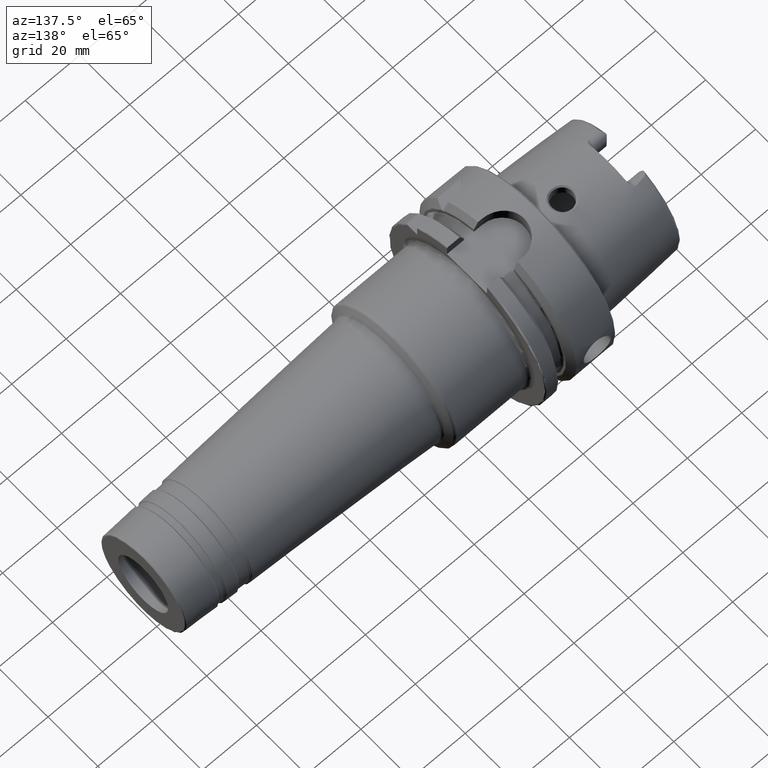
[diagram: clean part render]
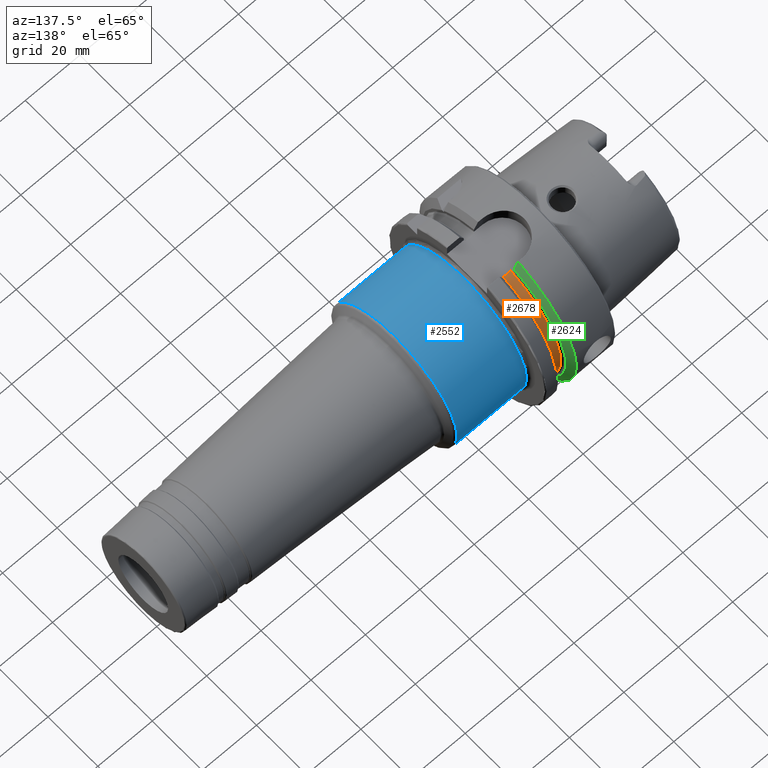
[diagram: same view with three faces highlighted in distinct colors, each labeled with its STEP entity id]
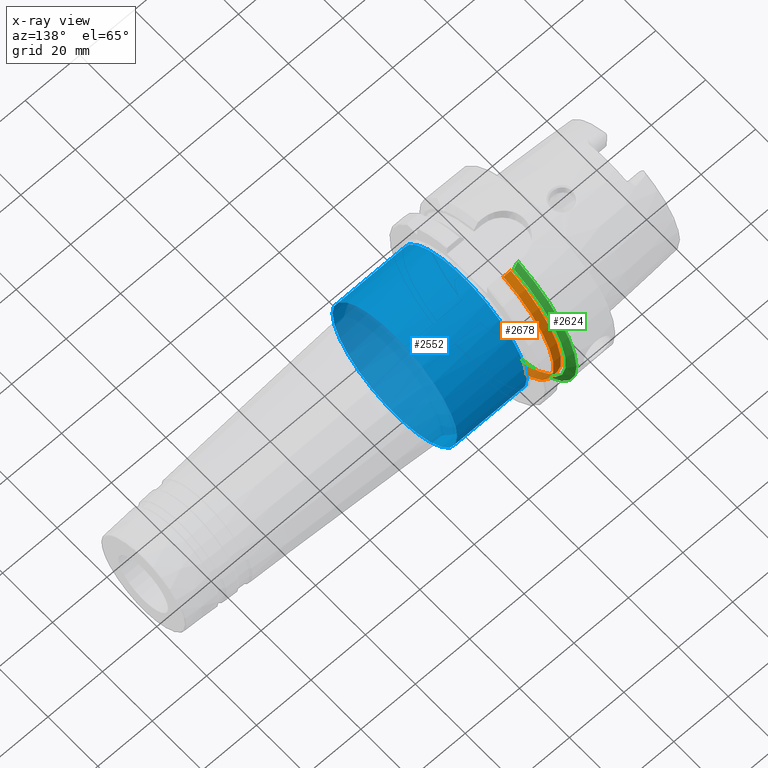
[diagram: x-ray of the same camera — body ghosted, the three highlighted faces saturated]
A machine part, auxiliary view with three faces highlighted in distinct colors.
The next image is the same camera in x-ray (body ghosted, the three faces saturated) — at least one of them is partly hidden behind the body in this view.
Their STEP definitions:

[orange] entity #2678 — the highlighted cylindrical surface (partial cylindrical patch) has radius 27.5 mm, axis along (1, 0, 0).
#182=CYLINDRICAL_SURFACE('',#3061,27.5);
#266=LINE('',#5179,#383);
#281=LINE('',#5366,#398);
#383=VECTOR('',#3622,10.);
#398=VECTOR('',#3691,10.);
#572=FACE_OUTER_BOUND('',#719,.T.);
#719=EDGE_LOOP('',(#2488,#2489,#2490,#2491));
#889=CIRCLE('',#2965,27.5);
#946=CIRCLE('',#3062,27.5);
#1174=VERTEX_POINT('',#5167);
#1175=VERTEX_POINT('',#5178);
#1198=VERTEX_POINT('',#5354);
#1199=VERTEX_POINT('',#5365);
#1539=EDGE_CURVE('',#1175,#1174,#266,.T.);
#1580=EDGE_CURVE('',#1199,#1198,#281,.T.);
#1582=EDGE_CURVE('',#1174,#1199,#889,.T.);
#1663=EDGE_CURVE('',#1175,#1198,#946,.T.);
#2488=ORIENTED_EDGE('',*,*,#1539,.T.);
#2489=ORIENTED_EDGE('',*,*,#1582,.T.);
#2490=ORIENTED_EDGE('',*,*,#1580,.T.);
#2491=ORIENTED_EDGE('',*,*,#1663,.F.);
#2678=ADVANCED_FACE('',(#572),#182,.T.);
#2965=AXIS2_PLACEMENT_3D('',#5378,#3694,#3695);
#3061=AXIS2_PLACEMENT_3D('',#5590,#3905,#3906);
#3062=AXIS2_PLACEMENT_3D('',#5591,#3907,#3908);
#3622=DIRECTION('',(-1.,0.,0.));
#3691=DIRECTION('',(1.,0.,0.));
#3694=DIRECTION('center_axis',(1.,0.,0.));
#3695=DIRECTION('ref_axis',(0.,0.,-1.));
#3905=DIRECTION('center_axis',(1.,0.,0.));
#3906=DIRECTION('ref_axis',(0.,1.,0.));
#3907=DIRECTION('center_axis',(1.,0.,0.));
#3908=DIRECTION('ref_axis',(0.,0.,-1.));
#5167=CARTESIAN_POINT('',(16.625,7.34846922834952,-26.5));
#5178=CARTESIAN_POINT('',(19.375,7.34846922834952,-26.5));
#5179=CARTESIAN_POINT('',(18.,7.34846922834952,-26.5));
#5354=CARTESIAN_POINT('',(19.375,7.34846922834952,26.5));
#5365=CARTESIAN_POINT('',(16.625,7.34846922834952,26.5));
#5366=CARTESIAN_POINT('',(18.,7.34846922834952,26.5));
#5378=CARTESIAN_POINT('Origin',(16.625,0.,0.));
#5590=CARTESIAN_POINT('Origin',(18.,0.,0.));
#5591=CARTESIAN_POINT('Origin',(19.375,0.,0.));

[blue] entity #2552 — the highlighted cylindrical surface (bore or boss wall) has radius 25 mm, axis along (1, 0, 0).
#150=CYLINDRICAL_SURFACE('',#2725,25.);
#186=LINE('',#3968,#303);
#303=VECTOR('',#3120,25.);
#446=FACE_OUTER_BOUND('',#582,.T.);
#582=EDGE_LOOP('',(#1700,#1701,#1702,#1703,#1704,#1705,#1706,#1707));
#739=CIRCLE('',#2722,25.);
#740=CIRCLE('',#2723,25.);
#741=CIRCLE('',#2724,25.);
#742=CIRCLE('',#2726,25.);
#743=CIRCLE('',#2727,25.);
#744=CIRCLE('',#2728,25.);
#963=VERTEX_POINT('',#3959);
#964=VERTEX_POINT('',#3961);
#965=VERTEX_POINT('',#3963);
#966=VERTEX_POINT('',#3967);
#967=VERTEX_POINT('',#3969);
#968=VERTEX_POINT('',#3971);
#1261=EDGE_CURVE('',#963,#964,#739,.T.);
#1262=EDGE_CURVE('',#964,#965,#740,.T.);
#1263=EDGE_CURVE('',#965,#963,#741,.T.);
#1264=EDGE_CURVE('',#964,#966,#186,.T.);
#1265=EDGE_CURVE('',#967,#966,#742,.T.);
#1266=EDGE_CURVE('',#968,#967,#743,.T.);
#1267=EDGE_CURVE('',#966,#968,#744,.T.);
#1700=ORIENTED_EDGE('',*,*,#1263,.F.);
#1701=ORIENTED_EDGE('',*,*,#1262,.F.);
#1702=ORIENTED_EDGE('',*,*,#1264,.T.);
#1703=ORIENTED_EDGE('',*,*,#1265,.F.);
#1704=ORIENTED_EDGE('',*,*,#1266,.F.);
#1705=ORIENTED_EDGE('',*,*,#1267,.F.);
#1706=ORIENTED_EDGE('',*,*,#1264,.F.);
#1707=ORIENTED_EDGE('',*,*,#1261,.F.);
#2552=ADVANCED_FACE('',(#446),#150,.T.);
#2722=AXIS2_PLACEMENT_3D('',#3962,#3112,#3113);
#2723=AXIS2_PLACEMENT_3D('',#3964,#3114,#3115);
#2724=AXIS2_PLACEMENT_3D('',#3965,#3116,#3117);
#2725=AXIS2_PLACEMENT_3D('',#3966,#3118,#3119);
#2726=AXIS2_PLACEMENT_3D('',#3970,#3121,#3122);
#2727=AXIS2_PLACEMENT_3D('',#3972,#3123,#3124);
#2728=AXIS2_PLACEMENT_3D('',#3973,#3125,#3126);
#3112=DIRECTION('center_axis',(1.,0.,0.));
#3113=DIRECTION('ref_axis',(0.,-1.,1.83697019872103E-16));
#3114=DIRECTION('center_axis',(1.,0.,0.));
#3115=DIRECTION('ref_axis',(0.,-1.,1.83697019872103E-16));
#3116=DIRECTION('center_axis',(1.,0.,0.));
#3117=DIRECTION('ref_axis',(0.,-1.,1.83697019872103E-16));
#3118=DIRECTION('center_axis',(1.,0.,0.));
#3119=DIRECTION('ref_axis',(0.,1.,0.));
#3120=DIRECTION('',(-1.,0.,0.));
#3121=DIRECTION('center_axis',(-1.,0.,0.));
#3122=DIRECTION('ref_axis',(0.,-1.,-1.22464679914735E-16));
#3123=DIRECTION('center_axis',(-1.,0.,0.));
#3124=DIRECTION('ref_axis',(0.,-1.,-1.22464679914735E-16));
#3125=DIRECTION('center_axis',(-1.,0.,0.));
#3126=DIRECTION('ref_axis',(0.,-1.,-1.22464679914735E-16));
#3959=CARTESIAN_POINT('',(52.5270356701958,-3.06161699786838E-15,25.));
#3961=CARTESIAN_POINT('',(52.5270356701958,-25.,-3.06161699786838E-15));
#3962=CARTESIAN_POINT('Origin',(52.5270356701958,0.,0.));
#3963=CARTESIAN_POINT('',(52.5270356701958,25.,-1.53080849893419E-15));
#3964=CARTESIAN_POINT('Origin',(52.5270356701958,0.,0.));
#3965=CARTESIAN_POINT('Origin',(52.5270356701958,0.,0.));
#3966=CARTESIAN_POINT('Origin',(39.5521929696927,0.,0.));
#3967=CARTESIAN_POINT('',(27.,-25.,-3.06161699786838E-15));
#3968=CARTESIAN_POINT('',(39.5521929696927,-25.,-3.06161699786838E-15));
#3969=CARTESIAN_POINT('',(27.,-3.06161699786838E-15,-25.));
#3970=CARTESIAN_POINT('Origin',(27.,0.,0.));
#3971=CARTESIAN_POINT('',(27.,25.,0.));
#3972=CARTESIAN_POINT('Origin',(27.,0.,0.));
#3973=CARTESIAN_POINT('Origin',(27.,0.,0.));

[green] entity #2624 — the highlighted conical surface has half-angle 60 deg.
#24=(
BOUNDED_CURVE()
B_SPLINE_CURVE(2,(#5095,#5096,#5097),.UNSPECIFIED.,.F.,.F.)
B_SPLINE_CURVE_WITH_KNOTS((3,3),(0.,0.311314369989023),.UNSPECIFIED.)
CURVE()
GEOMETRIC_REPRESENTATION_ITEM()
RATIONAL_B_SPLINE_CURVE((1.,1.00102053193771,1.))
REPRESENTATION_ITEM('')
);
#27=(
BOUNDED_CURVE()
B_SPLINE_CURVE(2,(#5251,#5252,#5253),.UNSPECIFIED.,.F.,.F.)
B_SPLINE_CURVE_WITH_KNOTS((3,3),(0.,0.30890566777038),.UNSPECIFIED.)
CURVE()
GEOMETRIC_REPRESENTATION_ITEM()
RATIONAL_B_SPLINE_CURVE((1.,1.00099999355705,1.))
REPRESENTATION_ITEM('')
);
#434=CONICAL_SURFACE('',#2943,30.1987976320958,1.0471975511966);
#518=FACE_OUTER_BOUND('',#661,.T.);
#661=EDGE_LOOP('',(#2193,#2194,#2195,#2196));
#879=CIRCLE('',#2939,31.5);
#882=CIRCLE('',#2944,28.8975952641916);
#1162=VERTEX_POINT('',#5092);
#1163=VERTEX_POINT('',#5094);
#1181=VERTEX_POINT('',#5237);
#1184=VERTEX_POINT('',#5250);
#1519=EDGE_CURVE('',#1163,#1162,#24,.T.);
#1548=EDGE_CURVE('',#1162,#1181,#879,.T.);
#1553=EDGE_CURVE('',#1181,#1184,#27,.T.);
#1554=EDGE_CURVE('',#1163,#1184,#882,.T.);
#2193=ORIENTED_EDGE('',*,*,#1519,.T.);
#2194=ORIENTED_EDGE('',*,*,#1548,.T.);
#2195=ORIENTED_EDGE('',*,*,#1553,.T.);
#2196=ORIENTED_EDGE('',*,*,#1554,.F.);
#2624=ADVANCED_FACE('',(#518),#434,.T.);
#2939=AXIS2_PLACEMENT_3D('',#5239,#3630,#3631);
#2943=AXIS2_PLACEMENT_3D('',#5249,#3639,#3640);
#2944=AXIS2_PLACEMENT_3D('',#5254,#3641,#3642);
#3630=DIRECTION('center_axis',(1.,0.,0.));
#3631=DIRECTION('ref_axis',(0.,0.,-1.));
#3639=DIRECTION('center_axis',(-1.,0.,0.));
#3640=DIRECTION('ref_axis',(0.,1.,0.));
#3641=DIRECTION('center_axis',(1.,0.,0.));
#3642=DIRECTION('ref_axis',(0.,0.,-1.));
#5092=CARTESIAN_POINT('',(14.6225009252407,9.,-30.1869176962472));
#5094=CARTESIAN_POINT('',(16.125,9.,-27.4603534582684));
#5095=CARTESIAN_POINT('Ctrl Pts',(16.125,9.,-27.4603534582684));
#5096=CARTESIAN_POINT('Ctrl Pts',(15.4092825889603,9.,-28.7648946319264));
#5097=CARTESIAN_POINT('Ctrl Pts',(14.6225009252407,9.00000000000001,-30.1869176962472));
#5237=CARTESIAN_POINT('',(14.6225009252407,8.,30.4671954731642));
#5239=CARTESIAN_POINT('Origin',(14.6225009252407,0.,0.));
#5249=CARTESIAN_POINT('Origin',(15.3737504626203,0.,0.));
#5250=CARTESIAN_POINT('',(16.125,8.,27.7681654426977));
#5251=CARTESIAN_POINT('Ctrl Pts',(14.6225009252407,8.,30.4671954731643));
#5252=CARTESIAN_POINT('Ctrl Pts',(15.4085685702067,8.,29.0595327079882));
#5253=CARTESIAN_POINT('Ctrl Pts',(16.125,8.,27.7681654426977));
#5254=CARTESIAN_POINT('Origin',(16.125,0.,0.));